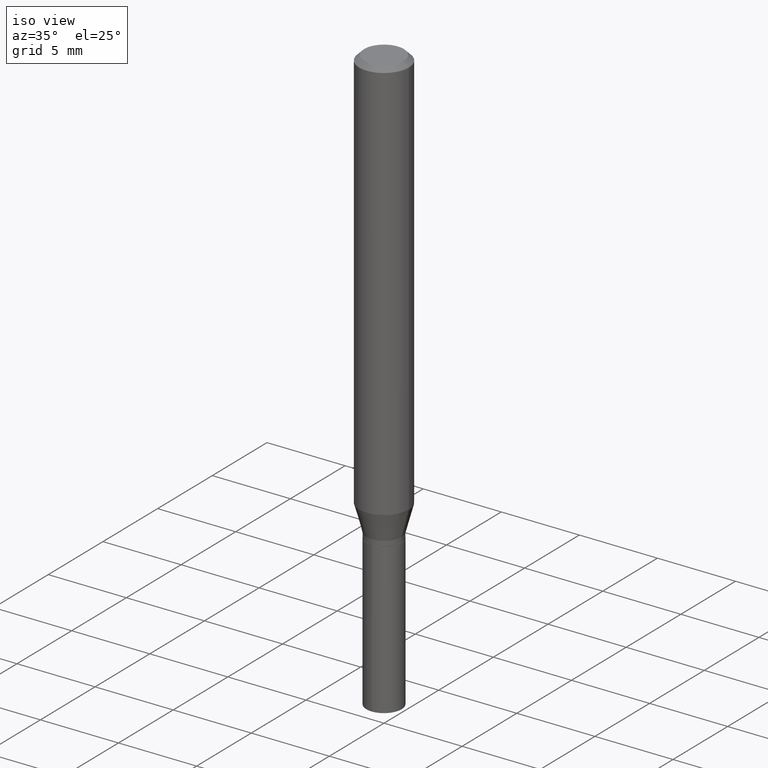
[diagram: clean part render]
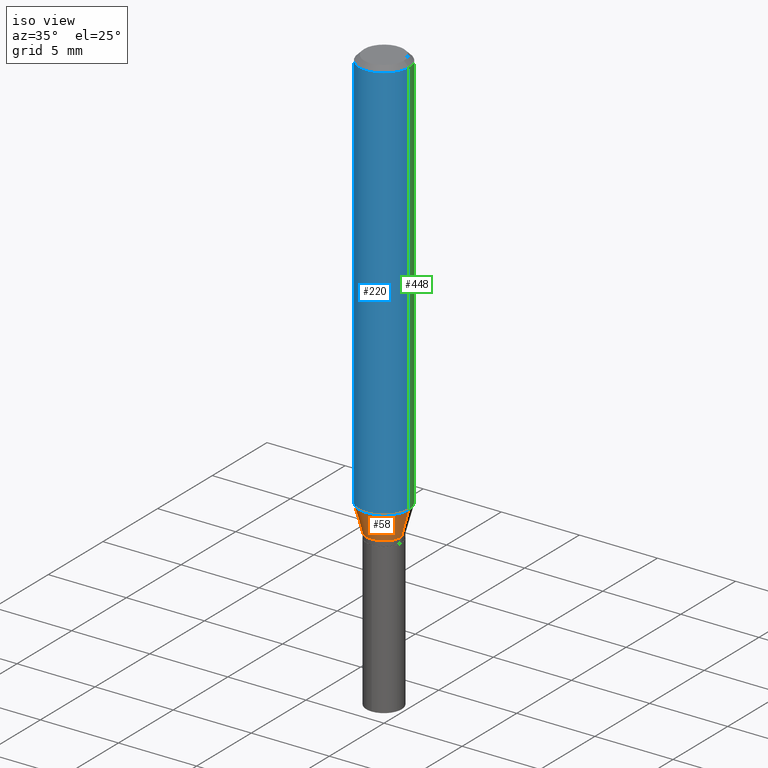
[diagram: same view with three faces highlighted in distinct colors, each labeled with its STEP entity id]
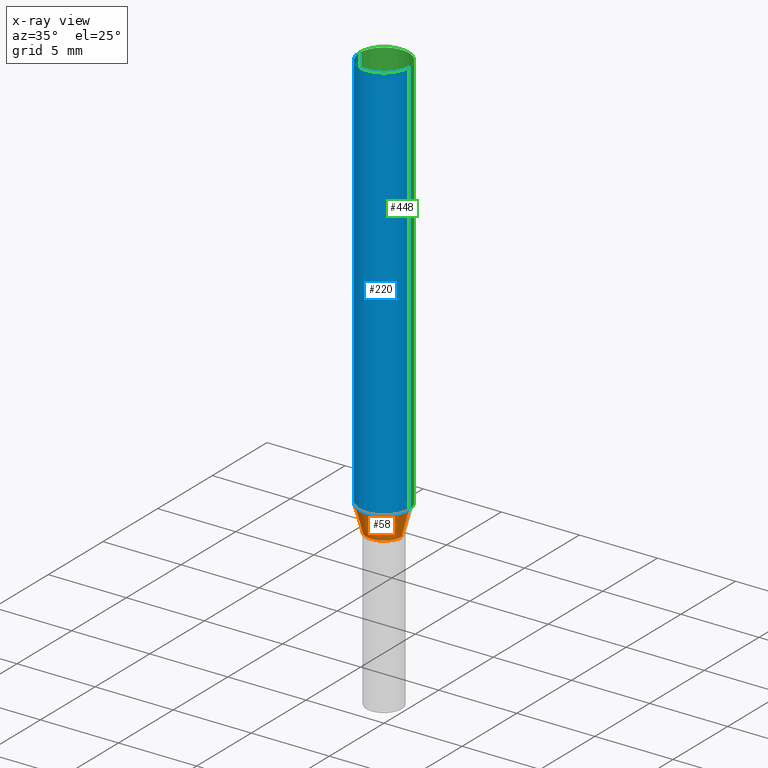
[diagram: x-ray of the same camera — body ghosted, the three highlighted faces saturated]
A machine part, iso view with three faces highlighted in distinct colors.
The next image is the same camera in x-ray (body ghosted, the three faces saturated) — at least one of them is partly hidden behind the body in this view.
Their STEP definitions:

[orange] entity #58 — the highlighted conical surface has half-angle 15 deg.
#4 = DIRECTION ( 'NONE',  ( -2.445468806185136597E-29, 3.491481338843145583E-15, 1.000000000000000000 ) ) ;
#27 = ORIENTED_EDGE ( 'NONE', *, *, #393, .F. ) ;
#37 = ORIENTED_EDGE ( 'NONE', *, *, #99, .F. ) ;
#39 = CARTESIAN_POINT ( 'NONE',  ( -0.04449999999999999789, -3.477652105373717759E-15, -1.086600000000000010 ) ) ;
#58 = ADVANCED_FACE ( 'NONE', ( #85 ), #271, .T. ) ;
#61 = CARTESIAN_POINT ( 'NONE',  ( 0.04449999999999999789, -4.104585461944000907E-15, -1.086600000000000010 ) ) ;
#71 = CARTESIAN_POINT ( 'NONE',  ( -0.04449999999999999789, -3.500172160009255549E-15, -1.086600000000000010 ) ) ;
#75 = ORIENTED_EDGE ( 'NONE', *, *, #225, .T. ) ;
#85 = FACE_OUTER_BOUND ( 'NONE', #450, .T. ) ;
#87 = CIRCLE ( 'NONE', #488, 0.04449999999999999789 ) ;
#99 = EDGE_CURVE ( 'NONE', #267, #248, #118, .T. ) ;
#104 = VECTOR ( 'NONE', #130, 39.37007874015748854 ) ;
#106 = CARTESIAN_POINT ( 'NONE',  ( 0.06250000000000012490, -3.995731846638011698E-15, -1.019423085463760037 ) ) ;
#118 = LINE ( 'NONE', #39, #149 ) ;
#122 = DIRECTION ( 'NONE',  ( -0.2588190451025211836, 5.211531920934547886E-15, 0.9659258262890679791 ) ) ;
#130 = DIRECTION ( 'NONE',  ( 0.2588190451025211836, 1.565188264969622559E-15, 0.9659258262890679791 ) ) ;
#132 = LINE ( 'NONE', #389, #104 ) ;
#149 = VECTOR ( 'NONE', #122, 39.37007874015748854 ) ;
#212 = DIRECTION ( 'NONE',  ( 1.000000000000000000, -6.982962677686264344E-15, 0.000000000000000000 ) ) ;
#225 = EDGE_CURVE ( 'NONE', #342, #335, #132, .T. ) ;
#229 = AXIS2_PLACEMENT_3D ( 'NONE', #274, #4, #236 ) ;
#236 = DIRECTION ( 'NONE',  ( 1.000000000000000000, -6.982962677686267499E-15, 0.000000000000000000 ) ) ;
#237 = DIRECTION ( 'NONE',  ( 1.000000000000000000, -6.982962677686267499E-15, 0.000000000000000000 ) ) ;
#243 = CARTESIAN_POINT ( 'NONE',  ( 2.657246404800769679E-29, -3.793843622786962228E-15, -1.086600000000000010 ) ) ;
#248 = VERTEX_POINT ( 'NONE', #433 ) ;
#250 = EDGE_CURVE ( 'NONE', #267, #342, #87, .T. ) ;
#267 = VERTEX_POINT ( 'NONE', #71 ) ;
#271 = CONICAL_SURFACE ( 'NONE', #229, 0.04449999999999999789, 0.2617993877991499074 ) ;
#274 = CARTESIAN_POINT ( 'NONE',  ( 2.657246404800769679E-29, -3.793843622786962228E-15, -1.086600000000000010 ) ) ;
#317 = CIRCLE ( 'NONE', #355, 0.06250000000000012490 ) ;
#335 = VERTEX_POINT ( 'NONE', #106 ) ;
#342 = VERTEX_POINT ( 'NONE', #61 ) ;
#355 = AXIS2_PLACEMENT_3D ( 'NONE', #481, #399, #212 ) ;
#389 = CARTESIAN_POINT ( 'NONE',  ( 0.04449999999999999789, -4.104585461944000907E-15, -1.086600000000000010 ) ) ;
#390 = DIRECTION ( 'NONE',  ( -2.445468806185136597E-29, 3.491481338843145583E-15, 1.000000000000000000 ) ) ;
#393 = EDGE_CURVE ( 'NONE', #248, #335, #317, .T. ) ;
#399 = DIRECTION ( 'NONE',  ( -2.445468806185136597E-29, 3.491481338843145583E-15, 1.000000000000000000 ) ) ;
#433 = CARTESIAN_POINT ( 'NONE',  ( -0.06250000000000012490, -3.115207469432555441E-15, -1.019423085463760037 ) ) ;
#450 = EDGE_LOOP ( 'NONE', ( #37, #479, #75, #27 ) ) ;
#479 = ORIENTED_EDGE ( 'NONE', *, *, #250, .T. ) ;
#481 = CARTESIAN_POINT ( 'NONE',  ( 2.492967355806629437E-29, -3.559296679282619240E-15, -1.019423085463760037 ) ) ;
#488 = AXIS2_PLACEMENT_3D ( 'NONE', #243, #390, #237 ) ;

[blue] entity #220 — the highlighted cylindrical surface (edge-blend (fillet) strip) has radius 1.5875 mm, axis along (-0, 0, 1).
#32 = EDGE_CURVE ( 'NONE', #335, #41, #311, .T. ) ;
#41 = VERTEX_POINT ( 'NONE', #306 ) ;
#45 = AXIS2_PLACEMENT_3D ( 'NONE', #91, #467, #469 ) ;
#59 = DIRECTION ( 'NONE',  ( -2.445468806185136597E-29, 3.491481338843145583E-15, 1.000000000000000000 ) ) ;
#62 = CIRCLE ( 'NONE', #239, 0.06250000000000001388 ) ;
#90 = CYLINDRICAL_SURFACE ( 'NONE', #45, 0.06250000000000006939 ) ;
#91 = CARTESIAN_POINT ( 'NONE',  ( 0.000000000000000000, 0.000000000000000000, 0.000000000000000000 ) ) ;
#95 = FACE_OUTER_BOUND ( 'NONE', #392, .T. ) ;
#106 = CARTESIAN_POINT ( 'NONE',  ( 0.06250000000000012490, -3.995731846638011698E-15, -1.019423085463760037 ) ) ;
#108 = LINE ( 'NONE', #230, #180 ) ;
#124 = CARTESIAN_POINT ( 'NONE',  ( 0.06250000000000006939, -4.364351673553921624E-16, 3.047610484872463374E-30 ) ) ;
#137 = ORIENTED_EDGE ( 'NONE', *, *, #393, .T. ) ;
#146 = ORIENTED_EDGE ( 'NONE', *, *, #32, .T. ) ;
#171 = ORIENTED_EDGE ( 'NONE', *, *, #412, .F. ) ;
#176 = DIRECTION ( 'NONE',  ( 1.000000000000000000, -6.982962677686265922E-15, 0.000000000000000000 ) ) ;
#180 = VECTOR ( 'NONE', #188, 39.37007874015748143 ) ;
#188 = DIRECTION ( 'NONE',  ( -2.445468806185136877E-29, 3.491481338843145188E-15, 1.000000000000000000 ) ) ;
#212 = DIRECTION ( 'NONE',  ( 1.000000000000000000, -6.982962677686264344E-15, 0.000000000000000000 ) ) ;
#220 = ADVANCED_FACE ( 'NONE', ( #95 ), #90, .T. ) ;
#230 = CARTESIAN_POINT ( 'NONE',  ( -0.06250000000000006939, 4.440892098500631092E-16, -3.074334431409319267E-30 ) ) ;
#239 = AXIS2_PLACEMENT_3D ( 'NONE', #484, #59, #176 ) ;
#248 = VERTEX_POINT ( 'NONE', #433 ) ;
#306 = CARTESIAN_POINT ( 'NONE',  ( 0.06250000000000001388, -4.800786840909313294E-16, -0.01250000000000008916 ) ) ;
#311 = LINE ( 'NONE', #124, #400 ) ;
#317 = CIRCLE ( 'NONE', #355, 0.06250000000000012490 ) ;
#335 = VERTEX_POINT ( 'NONE', #106 ) ;
#344 = DIRECTION ( 'NONE',  ( -2.445468806185136877E-29, 3.491481338843145188E-15, 1.000000000000000000 ) ) ;
#355 = AXIS2_PLACEMENT_3D ( 'NONE', #481, #399, #212 ) ;
#368 = VERTEX_POINT ( 'NONE', #438 ) ;
#392 = EDGE_LOOP ( 'NONE', ( #425, #137, #146, #171 ) ) ;
#393 = EDGE_CURVE ( 'NONE', #248, #335, #317, .T. ) ;
#399 = DIRECTION ( 'NONE',  ( -2.445468806185136597E-29, 3.491481338843145583E-15, 1.000000000000000000 ) ) ;
#400 = VECTOR ( 'NONE', #344, 39.37007874015748143 ) ;
#412 = EDGE_CURVE ( 'NONE', #368, #41, #62, .T. ) ;
#425 = ORIENTED_EDGE ( 'NONE', *, *, #437, .F. ) ;
#433 = CARTESIAN_POINT ( 'NONE',  ( -0.06250000000000012490, -3.115207469432555441E-15, -1.019423085463760037 ) ) ;
#437 = EDGE_CURVE ( 'NONE', #248, #368, #108, .T. ) ;
#438 = CARTESIAN_POINT ( 'NONE',  ( -0.06250000000000001388, -1.357380888159015798E-15, -0.01250000000000008916 ) ) ;
#467 = DIRECTION ( 'NONE',  ( -2.445468806185136597E-29, 3.491481338843145583E-15, 1.000000000000000000 ) ) ;
#469 = DIRECTION ( 'NONE',  ( 1.000000000000000000, -6.982962677686266711E-15, 4.876176775795935793E-29 ) ) ;
#481 = CARTESIAN_POINT ( 'NONE',  ( 2.492967355806629437E-29, -3.559296679282619240E-15, -1.019423085463760037 ) ) ;
#484 = CARTESIAN_POINT ( 'NONE',  ( 3.056836007731442729E-31, -4.364351673553962300E-17, -0.01250000000000008916 ) ) ;

[green] entity #448 — the highlighted cylindrical surface (edge-blend (fillet) strip) has radius 1.5875 mm, axis along (-0, 0, 1).
#32 = EDGE_CURVE ( 'NONE', #335, #41, #311, .T. ) ;
#41 = VERTEX_POINT ( 'NONE', #306 ) ;
#64 = DIRECTION ( 'NONE',  ( -2.445468806185136597E-29, 3.491481338843145583E-15, 1.000000000000000000 ) ) ;
#72 = CIRCLE ( 'NONE', #123, 0.06250000000000001388 ) ;
#88 = AXIS2_PLACEMENT_3D ( 'NONE', #415, #413, #268 ) ;
#106 = CARTESIAN_POINT ( 'NONE',  ( 0.06250000000000012490, -3.995731846638011698E-15, -1.019423085463760037 ) ) ;
#108 = LINE ( 'NONE', #230, #180 ) ;
#123 = AXIS2_PLACEMENT_3D ( 'NONE', #295, #64, #287 ) ;
#124 = CARTESIAN_POINT ( 'NONE',  ( 0.06250000000000006939, -4.364351673553921624E-16, 3.047610484872463374E-30 ) ) ;
#148 = FACE_OUTER_BOUND ( 'NONE', #414, .T. ) ;
#170 = DIRECTION ( 'NONE',  ( -2.445468806185136597E-29, 3.491481338843145583E-15, 1.000000000000000000 ) ) ;
#180 = VECTOR ( 'NONE', #188, 39.37007874015748143 ) ;
#185 = ORIENTED_EDGE ( 'NONE', *, *, #427, .T. ) ;
#188 = DIRECTION ( 'NONE',  ( -2.445468806185136877E-29, 3.491481338843145188E-15, 1.000000000000000000 ) ) ;
#207 = CARTESIAN_POINT ( 'NONE',  ( 2.492967355806629437E-29, -3.559296679282619240E-15, -1.019423085463760037 ) ) ;
#216 = ORIENTED_EDGE ( 'NONE', *, *, #308, .F. ) ;
#226 = CYLINDRICAL_SURFACE ( 'NONE', #88, 0.06250000000000006939 ) ;
#230 = CARTESIAN_POINT ( 'NONE',  ( -0.06250000000000006939, 4.440892098500631092E-16, -3.074334431409319267E-30 ) ) ;
#248 = VERTEX_POINT ( 'NONE', #433 ) ;
#258 = ORIENTED_EDGE ( 'NONE', *, *, #437, .T. ) ;
#268 = DIRECTION ( 'NONE',  ( 1.000000000000000000, -6.982962677686266711E-15, 4.876176775795935793E-29 ) ) ;
#287 = DIRECTION ( 'NONE',  ( 1.000000000000000000, -6.982962677686265922E-15, 0.000000000000000000 ) ) ;
#295 = CARTESIAN_POINT ( 'NONE',  ( 3.056836007731442729E-31, -4.364351673553962300E-17, -0.01250000000000008916 ) ) ;
#306 = CARTESIAN_POINT ( 'NONE',  ( 0.06250000000000001388, -4.800786840909313294E-16, -0.01250000000000008916 ) ) ;
#308 = EDGE_CURVE ( 'NONE', #41, #368, #72, .T. ) ;
#311 = LINE ( 'NONE', #124, #400 ) ;
#335 = VERTEX_POINT ( 'NONE', #106 ) ;
#344 = DIRECTION ( 'NONE',  ( -2.445468806185136877E-29, 3.491481338843145188E-15, 1.000000000000000000 ) ) ;
#364 = DIRECTION ( 'NONE',  ( 1.000000000000000000, -6.982962677686264344E-15, 0.000000000000000000 ) ) ;
#368 = VERTEX_POINT ( 'NONE', #438 ) ;
#371 = CIRCLE ( 'NONE', #436, 0.06250000000000012490 ) ;
#400 = VECTOR ( 'NONE', #344, 39.37007874015748143 ) ;
#410 = ORIENTED_EDGE ( 'NONE', *, *, #32, .F. ) ;
#413 = DIRECTION ( 'NONE',  ( -2.445468806185136597E-29, 3.491481338843145583E-15, 1.000000000000000000 ) ) ;
#414 = EDGE_LOOP ( 'NONE', ( #185, #258, #216, #410 ) ) ;
#415 = CARTESIAN_POINT ( 'NONE',  ( 0.000000000000000000, 0.000000000000000000, 0.000000000000000000 ) ) ;
#427 = EDGE_CURVE ( 'NONE', #335, #248, #371, .T. ) ;
#433 = CARTESIAN_POINT ( 'NONE',  ( -0.06250000000000012490, -3.115207469432555441E-15, -1.019423085463760037 ) ) ;
#436 = AXIS2_PLACEMENT_3D ( 'NONE', #207, #170, #364 ) ;
#437 = EDGE_CURVE ( 'NONE', #248, #368, #108, .T. ) ;
#438 = CARTESIAN_POINT ( 'NONE',  ( -0.06250000000000001388, -1.357380888159015798E-15, -0.01250000000000008916 ) ) ;
#448 = ADVANCED_FACE ( 'NONE', ( #148 ), #226, .T. ) ;